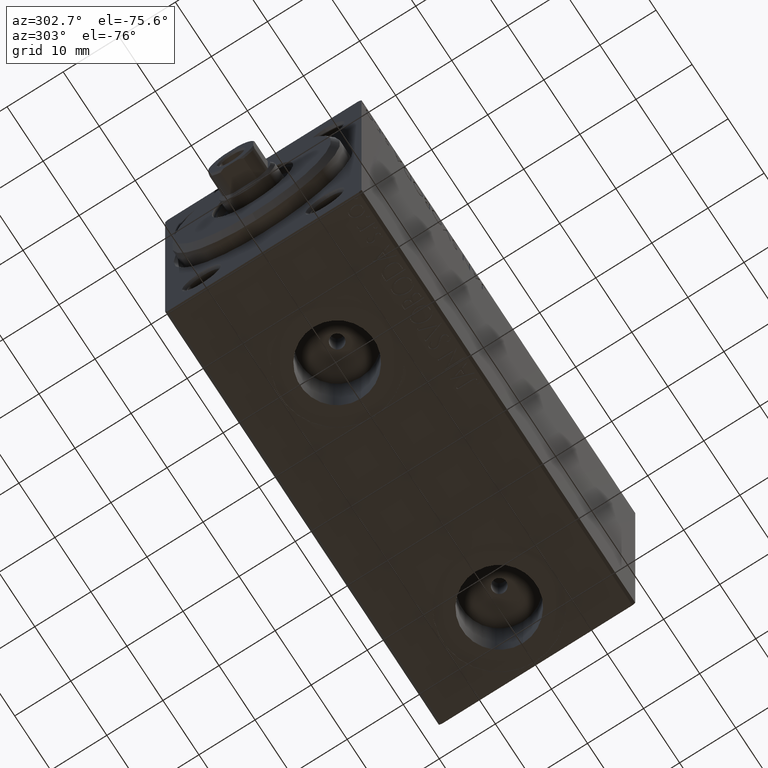
[diagram: clean part render]
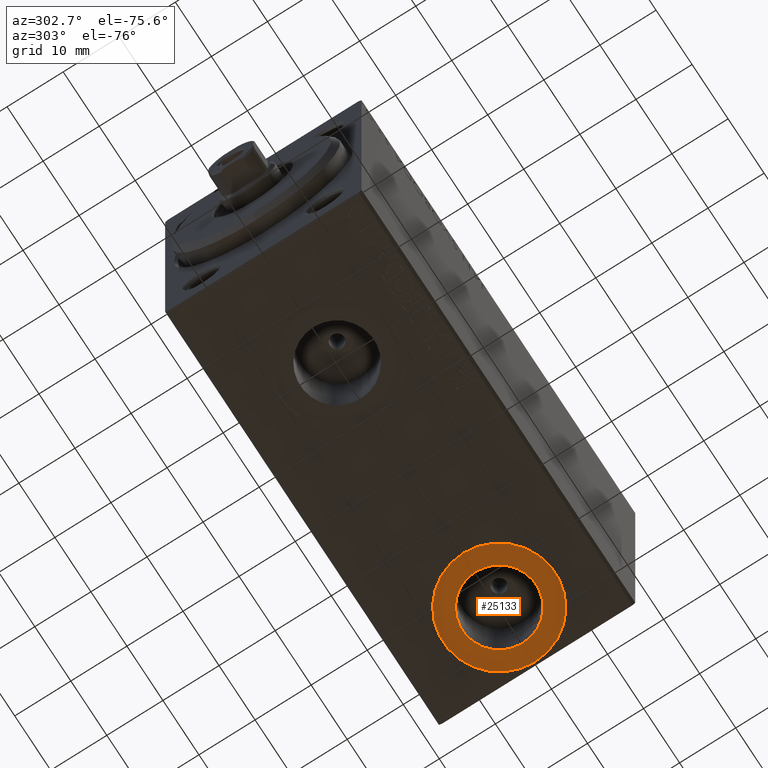
[diagram: same view with one face highlighted and labeled with its STEP entity id]
A machine part, auxiliary view. The second image highlights one B-rep face of the part: STEP entity #25133.
In plain terms, the highlighted planar face has unit normal (0, 0, -1).
Its self-contained STEP definition (entity closure, byte-faithful):
#30 = FACE_OUTER_BOUND ( 'NONE', #29278, .T. ) ;
#514 = EDGE_LOOP ( 'NONE', ( #711, #3849 ) ) ;
#711 = ORIENTED_EDGE ( 'NONE', *, *, #25698, .F. ) ;
#1915 = VERTEX_POINT ( 'NONE', #36429 ) ;
#3849 = ORIENTED_EDGE ( 'NONE', *, *, #8799, .F. ) ;
#5032 = CIRCLE ( 'NONE', #13880, 10.00000000000000178 ) ;
#5231 = AXIS2_PLACEMENT_3D ( 'NONE', #21503, #27796, #32118 ) ;
#6356 = CARTESIAN_POINT ( 'NONE',  ( 65.50000000000000000, -9.664887937585069901E-15, -27.40000000000000924 ) ) ;
#7537 = CIRCLE ( 'NONE', #8247, 10.00000000000000178 ) ;
#8247 = AXIS2_PLACEMENT_3D ( 'NONE', #25854, #33910, #23066 ) ;
#8799 = EDGE_CURVE ( 'NONE', #1915, #27055, #19752, .T. ) ;
#8880 = AXIS2_PLACEMENT_3D ( 'NONE', #18217, #40290, #19115 ) ;
#11029 = CARTESIAN_POINT ( 'NONE',  ( 55.50000000000000000, -9.664887937585069901E-15, -27.40000000000000924 ) ) ;
#11977 = PLANE ( 'NONE',  #8880 ) ;
#13880 = AXIS2_PLACEMENT_3D ( 'NONE', #31885, #21493, #28646 ) ;
#16923 = VERTEX_POINT ( 'NONE', #11029 ) ;
#16940 = DIRECTION ( 'NONE',  ( -1.000000000000000000, 0.000000000000000000, 0.000000000000000000 ) ) ;
#18217 = CARTESIAN_POINT ( 'NONE',  ( 65.50000000000000000, -9.664887937585069901E-15, -27.40000000000000924 ) ) ;
#18826 = EDGE_CURVE ( 'NONE', #16923, #21575, #5032, .T. ) ;
#19115 = DIRECTION ( 'NONE',  ( -1.000000000000000000, 0.000000000000000000, -0.000000000000000000 ) ) ;
#19752 = CIRCLE ( 'NONE', #29362, 6.580000000000002736 ) ;
#20398 = DIRECTION ( 'NONE',  ( 0.000000000000000000, 0.000000000000000000, -1.000000000000000000 ) ) ;
#21493 = DIRECTION ( 'NONE',  ( 0.000000000000000000, 0.000000000000000000, -1.000000000000000000 ) ) ;
#21503 = CARTESIAN_POINT ( 'NONE',  ( 65.50000000000000000, -9.664887937585069901E-15, -27.40000000000000924 ) ) ;
#21575 = VERTEX_POINT ( 'NONE', #26816 ) ;
#23066 = DIRECTION ( 'NONE',  ( -1.000000000000000000, 0.000000000000000000, 0.000000000000000000 ) ) ;
#24445 = ORIENTED_EDGE ( 'NONE', *, *, #18826, .T. ) ;
#25133 = ADVANCED_FACE ( 'NONE', ( #38479, #30 ), #11977, .T. ) ;
#25698 = EDGE_CURVE ( 'NONE', #27055, #1915, #39038, .T. ) ;
#25854 = CARTESIAN_POINT ( 'NONE',  ( 65.50000000000000000, -9.664887937585069901E-15, -27.40000000000000924 ) ) ;
#26816 = CARTESIAN_POINT ( 'NONE',  ( 75.50000000000000000, -8.440241138437715264E-15, -27.40000000000000924 ) ) ;
#27055 = VERTEX_POINT ( 'NONE', #44884 ) ;
#27796 = DIRECTION ( 'NONE',  ( 0.000000000000000000, 0.000000000000000000, -1.000000000000000000 ) ) ;
#28154 = EDGE_CURVE ( 'NONE', #21575, #16923, #7537, .T. ) ;
#28646 = DIRECTION ( 'NONE',  ( -1.000000000000000000, 0.000000000000000000, 0.000000000000000000 ) ) ;
#29278 = EDGE_LOOP ( 'NONE', ( #24445, #45261 ) ) ;
#29362 = AXIS2_PLACEMENT_3D ( 'NONE', #6356, #20398, #16940 ) ;
#31885 = CARTESIAN_POINT ( 'NONE',  ( 65.50000000000000000, -9.664887937585069901E-15, -27.40000000000000924 ) ) ;
#32118 = DIRECTION ( 'NONE',  ( -1.000000000000000000, 0.000000000000000000, 0.000000000000000000 ) ) ;
#33910 = DIRECTION ( 'NONE',  ( 0.000000000000000000, 0.000000000000000000, -1.000000000000000000 ) ) ;
#36429 = CARTESIAN_POINT ( 'NONE',  ( 72.07999999999999829, -8.859070343746110859E-15, -27.40000000000000924 ) ) ;
#38479 = FACE_BOUND ( 'NONE', #514, .T. ) ;
#39038 = CIRCLE ( 'NONE', #5231, 6.580000000000002736 ) ;
#40290 = DIRECTION ( 'NONE',  ( 0.000000000000000000, 0.000000000000000000, -1.000000000000000000 ) ) ;
#44884 = CARTESIAN_POINT ( 'NONE',  ( 58.92000000000000171, -9.664887937585069901E-15, -27.40000000000000924 ) ) ;
#45261 = ORIENTED_EDGE ( 'NONE', *, *, #28154, .T. ) ;